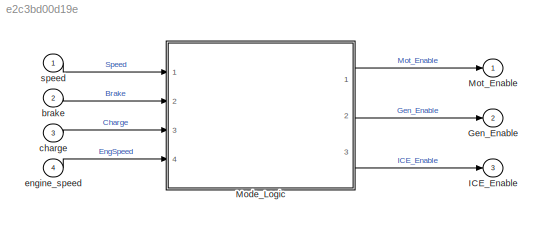
MODEL slx_e2c3bd00d19e
KIND model
CONFIG AbsTol = auto
CONFIG EnableMultiTasking = on
CONFIG FixedStep = 0.001
CONFIG MaxStep = auto
CONFIG MinStep = auto
CONFIG PreLoadFcn = % <copyright redacted>\n\nHEV_Model_HomeDir = pwd;\naddpath(pwd);\n\nload('Mode_Logic_data.mat');
CONFIG RelTol = 1e-3
CONFIG SampleTimeConstraint = Unconstrained
CONFIG Solver = FixedStepDiscrete
CONFIG SolverName = FixedStepDiscrete
CONFIG StartTime = 0.0
CONFIG StopTime = 10
BLOCK [Outport] Gen_Enable
  IconDisplay = Port number
  OutDataTypeStr = double
  Port = 2
  PortDimensions = 1
  SampleTime = [0.001,0]
  SamplingMode = Sample based
  SignalType = real
BLOCK [Outport] ICE_Enable
  IconDisplay = Port number
  OutDataTypeStr = double
  Port = 3
  PortDimensions = 1
  SampleTime = [0.001,0]
  SamplingMode = Sample based
  SignalType = real
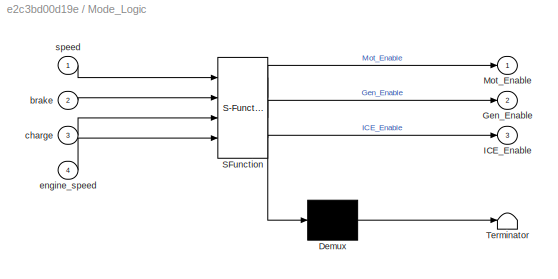
BLOCK [SubSystem] Mode_Logic
  ErrorFcn = Stateflow.Translate.translate
  PermitHierarchicalResolution = ExplicitOnly
  Ports = [4, 3]
  RequestExecContextInheritance = off
  SFBlockType = Chart
  TreatAsAtomicUnit = on
BLOCK [Demux] Mode_Logic/ Demux 
  Outputs = 1
  Ports = [1, 1]
BLOCK [S-Function] Mode_Logic/ SFunction 
  EnableBusSupport = on
  FunctionName = sf_sfun
  PortCounts = [4 4]
  Ports = [4, 4]
  SFcnIsStateOwnerBlock = off
  SFunctionDeploymentMode = off
  Tag = Stateflow S-Function Mode_Logic 1
BLOCK [Terminator] Mode_Logic/ Terminator 
BLOCK [Outport] Mode_Logic/Gen_Enable
  IconDisplay = Port number
  Port = 2
BLOCK [Outport] Mode_Logic/ICE_Enable
  IconDisplay = Port number
  Port = 3
BLOCK [Outport] Mode_Logic/Mot_Enable
  IconDisplay = Port number
BLOCK [Inport] Mode_Logic/brake
  IconDisplay = Port number
  Port = 2
BLOCK [Inport] Mode_Logic/charge
  IconDisplay = Port number
  Port = 3
BLOCK [Inport] Mode_Logic/engine_speed
  IconDisplay = Port number
  Port = 4
BLOCK [Inport] Mode_Logic/speed
  IconDisplay = Port number
BLOCK [Outport] Mot_Enable
  IconDisplay = Port number
  OutDataTypeStr = double
  PortDimensions = 1
  SampleTime = [0.001,0]
  SamplingMode = Sample based
  SignalType = real
BLOCK [Inport] brake
  IconDisplay = Port number
  OutDataTypeStr = double
  Port = 2
  PortDimensions = 1
  SampleTime = [0.001,0]
  SamplingMode = Sample based
  SignalType = real
BLOCK [Inport] charge
  IconDisplay = Port number
  OutDataTypeStr = double
  OutMax = 100
  OutMin = 0
  Port = 3
  PortDimensions = 1
  SampleTime = [0.001,0]
  SamplingMode = Sample based
  SignalType = real
BLOCK [Inport] engine_speed
  IconDisplay = Port number
  OutDataTypeStr = double
  Port = 4
  PortDimensions = 1
  SampleTime = [0.001,0]
  SamplingMode = Sample based
  SignalType = real
BLOCK [Inport] speed
  IconDisplay = Port number
  Interpolate = off
  OutDataTypeStr = double
  PortDimensions = 1
  SamplingMode = Sample based
  SignalType = real
  Unit = km/hr
LINE Mode_Logic:1 -> Mot_Enable:1
LINE Mode_Logic:2 -> Gen_Enable:1
LINE Mode_Logic:3 -> ICE_Enable:1
LINE brake:1 -> Mode_Logic:2
LINE charge:1 -> Mode_Logic:3
LINE engine_speed:1 -> Mode_Logic:4
LINE speed:1 -> Mode_Logic:1
CHART Mode_Logic states=9 transitions=12
  STATE_LABEL 'Motion_mode'
  STATE_LABEL 'Start_mode\nentry: Gen_Enable=1;\n           Mot_Enable=1;\n           ICE_Enable=0;'
  STATE_LABEL 'Normal_mode\nentry: ICE_Enable=1;'
  STATE_LABEL 'Accelerate_mode\nentry: Gen_Enable=0;\n          Mot_Enable=1;'
  STATE_LABEL 'Cruise_mode\nentry: Mot_Enable=1;'
  STATE_LABEL 'charge\nentry:Gen_Enable=1;\nMot_Enable = 0;'
  STATE_LABEL 'nocharge\nentry:Gen_Enable=0;'
  STATE_LABEL '[charge>100]'
  STATE_LABEL '[charge<30]'
  STATE_LABEL 'y = oldspeed'
  STATE_LABEL 'SCRIPT:\nfunction y = oldspeed\nspeed_buffer(2:end) = speed_buffer(1:end-1);\nspeed_buffer(1) = speed;\ny = mean(speed_buffer);'
  STATE_LABEL '[(speed <0.998*oldspeed() ...\n|| speed>1.002*oldspeed()) ...\n&& charge>32]'
  STATE_LABEL '[(speed >0.998*oldspeed() ...\n && speed<1.002* ...\noldspeed())|| charge<=30]'
  STATE_LABEL '[engine_speed<=EngOffRPM]'
  STATE_LABEL '[engine_speed>EngOnRPM]'
  STATE_LABEL 'Start_mode\nentry: Gen_Enable=1;\n           Mot_Enable=1;\n           ICE_Enable=0;'
  STATE_LABEL 'Normal_mode\nentry: ICE_Enable=1;'
  STATE_LABEL 'Accelerate_mode\nentry: Gen_Enable=0;\n          Mot_Enable=1;'
  STATE_LABEL 'Cruise_mode\nentry: Mot_Enable=1;'
  STATE_LABEL 'charge\nentry:Gen_Enable=1;\nMot_Enable = 0;'
  STATE_LABEL 'nocharge\nentry:Gen_Enable=0;'
  STATE_LABEL '[charge>100]'
  STATE_LABEL '[charge<30]'
  STATE_LABEL 'y = oldspeed'
  STATE_LABEL 'SCRIPT:\nfunction y = oldspeed\nspeed_buffer(2:end) = speed_buffer(1:end-1);\nspeed_buffer(1) = speed;\ny = mean(speed_buffer);'
  STATE_LABEL '[(speed <0.998*oldspeed() ...\n|| speed>1.002*oldspeed()) ...\n&& charge>32]'
  STATE_LABEL '[(speed >0.998*oldspeed() ...\n && speed<1.002* ...\noldspeed())|| charge<=30]'
  STATE_LABEL 'Accelerate_mode\nentry: Gen_Enable=0;\n          Mot_Enable=1;'
  STATE_LABEL 'Cruise_mode\nentry: Mot_Enable=1;'
  STATE_LABEL 'charge\nentry:Gen_Enable=1;\nMot_Enable = 0;'
  STATE_LABEL 'nocharge\nentry:Gen_Enable=0;'
  STATE_LABEL '[charge>100]'
  STATE_LABEL '[charge<30]'
  STATE_LABEL 'charge\nentry:Gen_Enable=1;\nMot_Enable = 0;'
  STATE_LABEL 'nocharge\nentry:Gen_Enable=0;'
  STATE_LABEL 'y = oldspeed'
  STATE_LABEL 'SCRIPT:\nfunction y = oldspeed\nspeed_buffer(2:end) = speed_buffer(1:end-1);\nspeed_buffer(1) = speed;\ny = mean(speed_buffer);'
  STATE_LABEL 'Brake_mode\nentry: Mot_Enable=1;\n           Gen_Enable=0;\n           ICE_Enable=0;'
CHART Test Sequence states=5 transitions=5
  STATE_LABEL 'Run_MotionMode\n\n%% Initialize data outputs.\nspeed = 0;\nbrake = 0;\ncharge = 90;\nengine_speed = ramp(et)*1000'
  STATE_LABEL 'AccelerateM_2_CruiseM_NoCharge\nspeed = ramp(et)*10;\ncharge = 40;'
  STATE_LABEL 'CruiseMode_Charge\ncharge = 20;'
  STATE_LABEL 'Brake_Applied\nbrake = 0.1;'
  STATE_LABEL 'End\nbrake = 0.0;'
